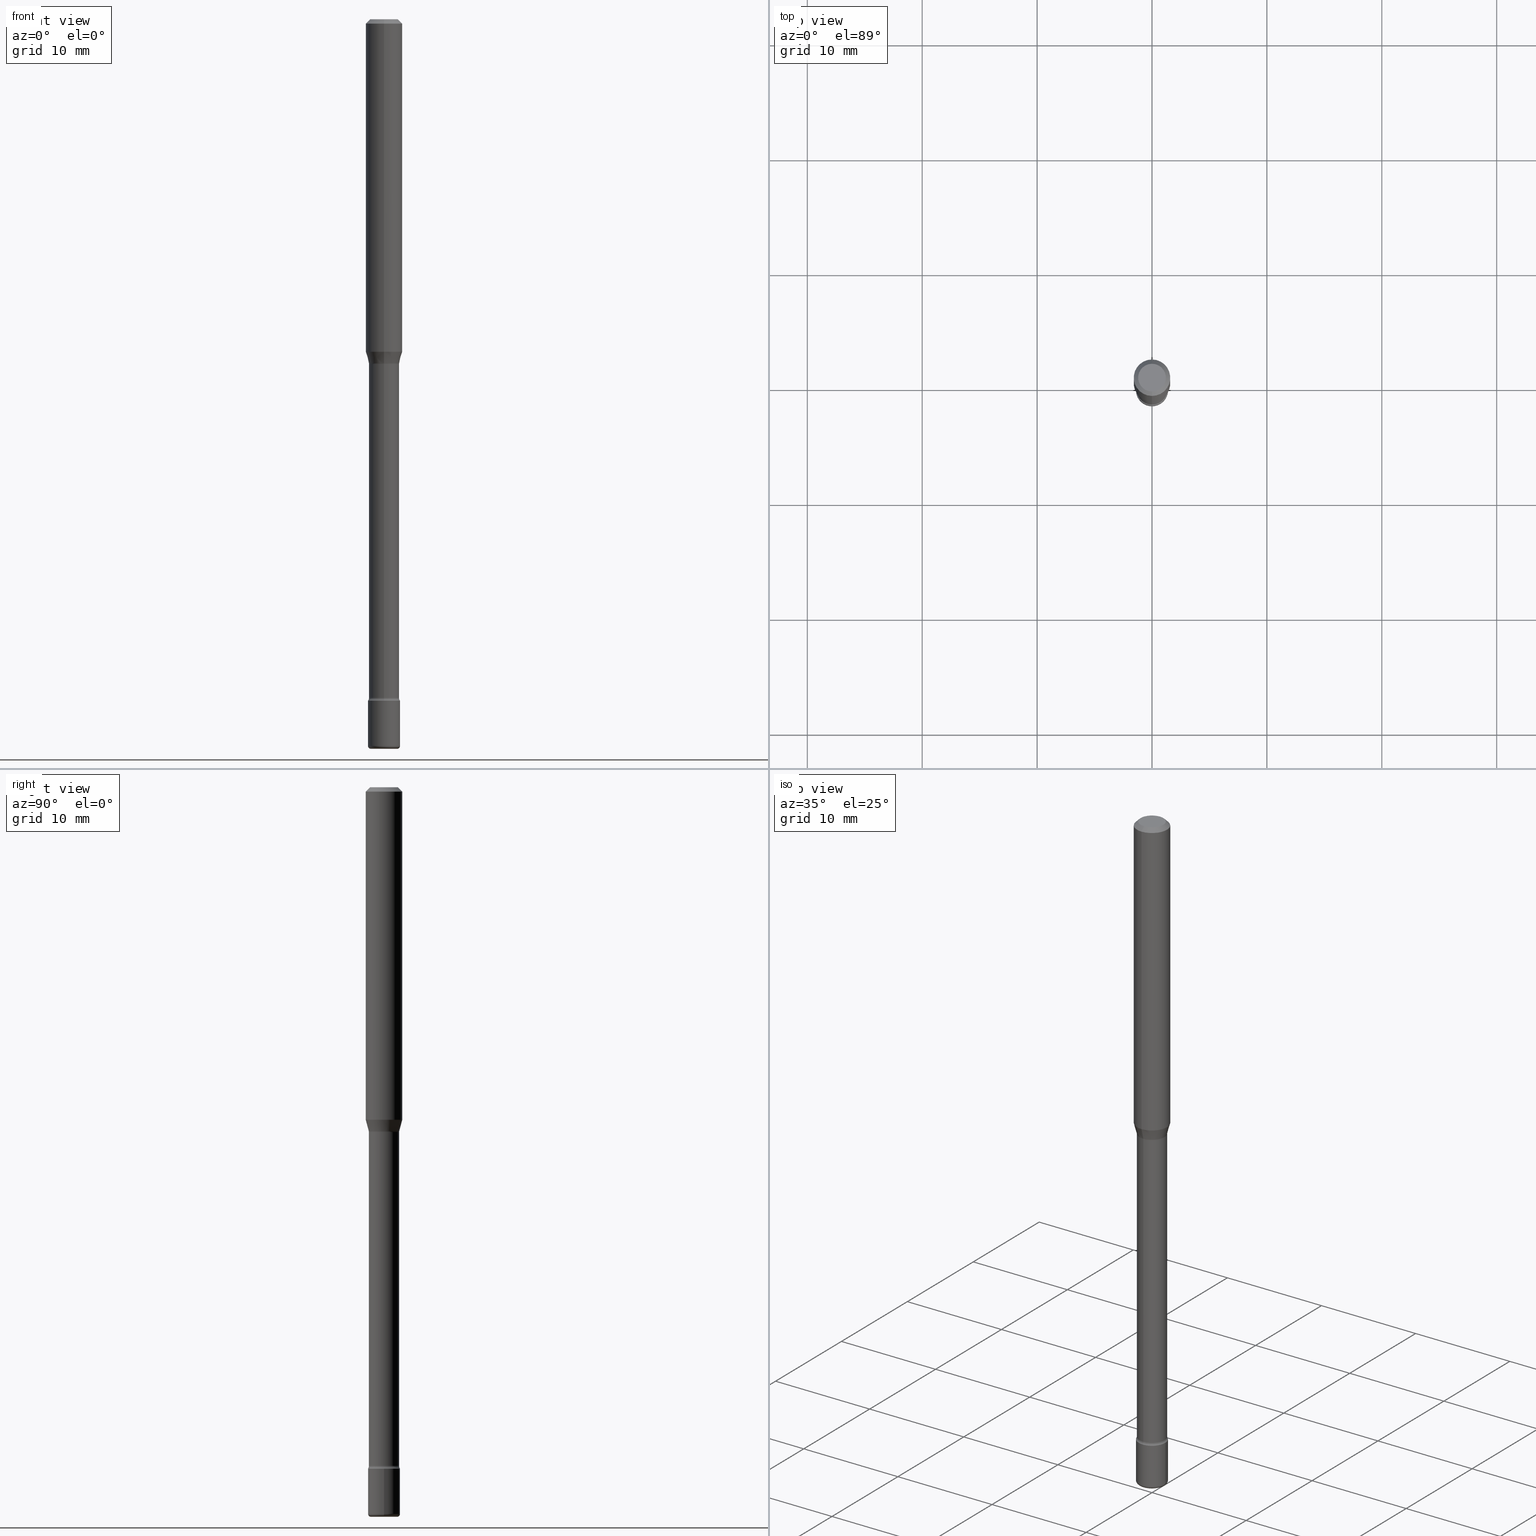
[diagram: canonical four-view strip — front | top / right | iso, engineering-drawing reading convention]
A machine part, canonical four-view strip (front | top / right | iso — engineering-drawing reading convention). The complete STEP part file that produces these views, byte-faithful:
ISO-10303-21;
HEADER;
FILE_DESCRIPTION (( 'STEP AP203' ),
    '1' );
FILE_NAME ('08973.STEP',
    '2024-03-06T20:13:18',
    ( '' ),
    ( '' ),
    'SwSTEP 2.0',
    'SolidWorks 2023',
    '' );
FILE_SCHEMA (( 'CONFIG_CONTROL_DESIGN' ));
ENDSEC;

DATA;
#1 = EDGE_LOOP ( 'NONE', ( #112, #293, #485, #316 ) ) ;
#2 = CARTESIAN_POINT ( 'NONE',  ( -3.773273898774339776E-16, -0.04749999999999998668, 1.387675388061806859E-16 ) ) ;
#3 = VERTEX_POINT ( 'NONE', #206 ) ;
#4 = AXIS2_PLACEMENT_3D ( 'NONE', #484, #449, #89 ) ;
#5 = TOROIDAL_SURFACE ( 'NONE', #452, 0.04499999999999999833, 0.01000000000000009041 ) ;
#6 = DIRECTION ( 'NONE',  ( -1.000000000000000000, 6.982962677686265922E-15, -4.876176775795935793E-29 ) ) ;
#7 = DIRECTION ( 'NONE',  ( 1.839019923739600315E-15, 0.2588190451025249583, 0.9659258262890670910 ) ) ;
#8 = CC_DESIGN_PERSON_AND_ORGANIZATION_ASSIGNMENT ( #30, #466, ( #14 ) ) ;
#9 = CYLINDRICAL_SURFACE ( 'NONE', #74, 0.05500000000000001416 ) ;
#10 = CARTESIAN_POINT ( 'NONE',  ( 3.316907271900975110E-16, 0.04749999999999998668, 5.964390164993622742E-17 ) ) ;
#11 = CLOSED_SHELL ( 'NONE', ( #498, #445, #402, #249, #288, #490 ) ) ;
#12 = CIRCLE ( 'NONE', #392, 0.05169999999999999596 ) ;
#13 = VERTEX_POINT ( 'NONE', #371 ) ;
#14 = PRODUCT ( '08973', '08973', '', ( #475 ) ) ;
#15 = LINE ( 'NONE', #289, #193 ) ;
#16 = ORIENTED_EDGE ( 'NONE', *, *, #164, .F. ) ;
#17 = DIRECTION ( 'NONE',  ( -2.445468806185136597E-29, 3.491481338843145583E-15, 1.000000000000000000 ) ) ;
#18 = ORIENTED_EDGE ( 'NONE', *, *, #537, .T. ) ;
#19 = CARTESIAN_POINT ( 'NONE',  ( -4.657636106016450234E-16, -0.06670000000000413098, -1.181974787463810683 ) ) ;
#20 = CLOSED_SHELL ( 'NONE', ( #205, #491, #145, #387, #456, #271, #297, #90, #88, #468, #55, #448, #327, #310 ) ) ;
#21 = CARTESIAN_POINT ( 'NONE',  ( 0.05500000000000000028, -8.536671873471490084E-15, -2.334999999999999964 ) ) ;
#22 = AXIS2_PLACEMENT_3D ( 'NONE', #526, #441, #235 ) ;
#23 = LOCAL_TIME ( 15, 13, 18.00000000000000000, #179 ) ;
#24 = CARTESIAN_POINT ( 'NONE',  ( 4.364351673553919652E-16, 0.06249999999999995143, -0.01500000000000024578 ) ) ;
#25 = CC_DESIGN_DATE_AND_TIME_ASSIGNMENT ( #238, #226, ( #422 ) ) ;
#26 = COORDINATED_UNIVERSAL_TIME_OFFSET ( 5, 0, .BEHIND. ) ;
#27 = EDGE_CURVE ( 'NONE', #43, #521, #181, .T. ) ;
#28 = DIRECTION ( 'NONE',  ( 1.000000000000000000, -6.982962677686260400E-15, 0.000000000000000000 ) ) ;
#29 = ORIENTED_EDGE ( 'NONE', *, *, #76, .F. ) ;
#30 = PERSON_AND_ORGANIZATION ( #274, #382 ) ;
#31 = CARTESIAN_POINT ( 'NONE',  ( 3.673505943879716688E-16, 0.05169999999999998902, 2.975576301308702297E-16 ) ) ;
#32 = AXIS2_PLACEMENT_3D ( 'NONE', #64, #58, #246 ) ;
#33 = CIRCLE ( 'NONE', #110, 0.01499999999999998557 ) ;
#34 = AXIS2_PLACEMENT_3D ( 'NONE', #339, #208, #510 ) ;
#35 = EDGE_LOOP ( 'NONE', ( #282, #401, #66, #474 ) ) ;
#36 = CARTESIAN_POINT ( 'NONE',  ( -1.169113584055446105E-44, 1.669184350826100908E-30, 4.780733988912460139E-16 ) ) ;
#37 = EDGE_LOOP ( 'NONE', ( #153, #483, #16, #355 ) ) ;
#38 = PERSON_AND_ORGANIZATION ( #274, #382 ) ;
#39 = DIRECTION ( 'NONE',  ( -6.982962677686266711E-15, -1.000000000000000000, 2.616155696869698836E-15 ) ) ;
#40 = ORIENTED_EDGE ( 'NONE', *, *, #542, .F. ) ;
#41 = FACE_OUTER_BOUND ( 'NONE', #1, .T. ) ;
#42 = APPLICATION_CONTEXT ( 'configuration controlled 3d designs of mechanical parts and assemblies' ) ;
#43 = VERTEX_POINT ( 'NONE', #325 ) ;
#44 = CIRCLE ( 'NONE', #329, 0.05169999999999998902 ) ;
#45 = APPROVAL_ROLE ( '' ) ;
#46 = AXIS2_PLACEMENT_3D ( 'NONE', #152, #328, #363 ) ;
#47 = EDGE_CURVE ( 'NONE', #521, #314, #459, .T. ) ;
#48 = CARTESIAN_POINT ( 'NONE',  ( 2.880890070537329542E-29, -4.113428890347467659E-15, -1.178092501787272983 ) ) ;
#49 = EDGE_LOOP ( 'NONE', ( #84, #126, #546, #563 ) ) ;
#50 = DIRECTION ( 'NONE',  ( -2.445385286950522456E-29, 3.491600943140732554E-15, 1.000000000000000000 ) ) ;
#51 = EDGE_LOOP ( 'NONE', ( #216, #18 ) ) ;
#52 = CARTESIAN_POINT ( 'NONE',  ( -4.287811248607203282E-16, -0.06250000000000005551, -0.01499999999999981036 ) ) ;
#53 = CIRCLE ( 'NONE', #61, 0.04749999999999998668 ) ;
#54 = CARTESIAN_POINT ( 'NONE',  ( 3.790745495280705543E-16, 0.05169999999999187051, -2.325613307291702903 ) ) ;
#55 = ADVANCED_FACE ( 'NONE', ( #144 ), #409, .F. ) ;
#56 = FACE_OUTER_BOUND ( 'NONE', #558, .T. ) ;
#57 = CARTESIAN_POINT ( 'NONE',  ( 5.710169662442294357E-29, -8.152608926198745099E-15, -2.334999999999999964 ) ) ;
#58 = DIRECTION ( 'NONE',  ( -2.445468806185136597E-29, 3.491481338843145583E-15, 1.000000000000000000 ) ) ;
#59 = AXIS2_PLACEMENT_3D ( 'NONE', #552, #215, #171 ) ;
#60 = DIRECTION ( 'NONE',  ( -2.445385286950522456E-29, 3.491600943140732554E-15, 1.000000000000000000 ) ) ;
#61 = AXIS2_PLACEMENT_3D ( 'NONE', #315, #94, #446 ) ;
#62 = EDGE_CURVE ( 'NONE', #269, #129, #320, .T. ) ;
#63 = AXIS2_PLACEMENT_3D ( 'NONE', #534, #559, #113 ) ;
#64 = CARTESIAN_POINT ( 'NONE',  ( 6.113672015462842613E-29, -8.728703347107864943E-15, -2.500000000000000000 ) ) ;
#65 = CARTESIAN_POINT ( 'NONE',  ( 0.000000000000000000, 0.000000000000000000, 0.000000000000000000 ) ) ;
#66 = ORIENTED_EDGE ( 'NONE', *, *, #396, .T. ) ;
#67 = COORDINATED_UNIVERSAL_TIME_OFFSET ( 5, 0, .BEHIND. ) ;
#68 = DIRECTION ( 'NONE',  ( -2.445385286950522456E-29, 3.491600943140732554E-15, 1.000000000000000000 ) ) ;
#69 = EDGE_CURVE ( 'NONE', #384, #13, #321, .T. ) ;
#70 = CARTESIAN_POINT ( 'NONE',  ( -3.840629472726877429E-16, -0.05500000000000818817, -2.334999999999999964 ) ) ;
#71 = EDGE_CURVE ( 'NONE', #201, #429, #167, .T. ) ;
#72 = DIRECTION ( 'NONE',  ( -2.445385286950522456E-29, 3.491600943140732554E-15, 1.000000000000000000 ) ) ;
#73 = AXIS2_PLACEMENT_3D ( 'NONE', #103, #454, #146 ) ;
#74 = AXIS2_PLACEMENT_3D ( 'NONE', #151, #17, #292 ) ;
#75 = CARTESIAN_POINT ( 'NONE',  ( 6.089217327400989947E-29, -8.693788533719431716E-15, -2.489999999999999769 ) ) ;
#76 = EDGE_CURVE ( 'NONE', #314, #129, #340, .T. ) ;
#77 = DIRECTION ( 'NONE',  ( -6.982962677686266711E-15, -1.000000000000000000, 2.616155696869698836E-15 ) ) ;
#78 = EDGE_CURVE ( 'NONE', #3, #98, #530, .T. ) ;
#79 = ORIENTED_EDGE ( 'NONE', *, *, #419, .T. ) ;
#80 = FACE_OUTER_BOUND ( 'NONE', #391, .T. ) ;
#81 = VECTOR ( 'NONE', #283, 39.37007874015748143 ) ;
#82 = AXIS2_PLACEMENT_3D ( 'NONE', #509, #423, #303 ) ;
#83 = FACE_OUTER_BOUND ( 'NONE', #178, .T. ) ;
#84 = ORIENTED_EDGE ( 'NONE', *, *, #354, .F. ) ;
#85 = PERSON_AND_ORGANIZATION_ROLE ( 'classification_officer' ) ;
#86 = ADVANCED_BREP_SHAPE_REPRESENTATION ( '08973', ( #104, #302, #268 ), #248 ) ;
#87 = CARTESIAN_POINT ( 'NONE',  ( 4.739320047520156833E-16, 0.06669999999999587370, -1.181974787463811127 ) ) ;
#88 = ADVANCED_FACE ( 'NONE', ( #383 ), #209, .T. ) ;
#89 = DIRECTION ( 'NONE',  ( -6.982962677686268288E-15, -1.000000000000000000, 0.000000000000000000 ) ) ;
#90 = ADVANCED_FACE ( 'NONE', ( #343 ), #345, .T. ) ;
#91 = TOROIDAL_SURFACE ( 'NONE', #421, 0.06670000000000005091, 0.01500000000000004975 ) ;
#92 = ORIENTED_EDGE ( 'NONE', *, *, #542, .T. ) ;
#93 = AXIS2_PLACEMENT_3D ( 'NONE', #223, #177, #255 ) ;
#94 = DIRECTION ( 'NONE',  ( -2.445385286950522456E-29, 3.491600943140732554E-15, 1.000000000000000000 ) ) ;
#95 = ORIENTED_EDGE ( 'NONE', *, *, #354, .T. ) ;
#96 = PERSON_AND_ORGANIZATION ( #274, #382 ) ;
#97 = FACE_OUTER_BOUND ( 'NONE', #49, .T. ) ;
#98 = VERTEX_POINT ( 'NONE', #514 ) ;
#99 = APPROVAL ( #133, 'UNSPECIFIED' ) ;
#100 = CARTESIAN_POINT ( 'NONE',  ( 6.089217327400989947E-29, -8.693788533719431716E-15, -2.489999999999999769 ) ) ;
#101 = EDGE_CURVE ( 'NONE', #98, #3, #478, .T. ) ;
#102 = VECTOR ( 'NONE', #368, 39.37007874015748143 ) ;
#103 = CARTESIAN_POINT ( 'NONE',  ( 3.668077930425790463E-31, -5.237401414711108766E-17, -0.01500000000000002720 ) ) ;
#104 = MANIFOLD_SOLID_BREP ( 'Body-Move/Copy2[1]', #11 ) ;
#105 = CYLINDRICAL_SURFACE ( 'NONE', #557, 0.05169999999999998902 ) ;
#106 = EDGE_CURVE ( 'NONE', #544, #13, #411, .T. ) ;
#107 = FACE_OUTER_BOUND ( 'NONE', #51, .T. ) ;
#108 = ORIENTED_EDGE ( 'NONE', *, *, #374, .F. ) ;
#109 = FACE_OUTER_BOUND ( 'NONE', #443, .T. ) ;
#110 = AXIS2_PLACEMENT_3D ( 'NONE', #87, #190, #127 ) ;
#111 = CC_DESIGN_APPROVAL ( #99, ( #422 ) ) ;
#112 = ORIENTED_EDGE ( 'NONE', *, *, #197, .F. ) ;
#113 = DIRECTION ( 'NONE',  ( -6.982962677686265922E-15, -1.000000000000000000, 3.483106191921935554E-15 ) ) ;
#114 = DIRECTION ( 'NONE',  ( -6.982962677686266711E-15, -1.000000000000000000, 4.966996352116842287E-15 ) ) ;
#115 = EDGE_CURVE ( 'NONE', #314, #493, #276, .T. ) ;
#116 = CARTESIAN_POINT ( 'NONE',  ( 3.673505943880288119E-16, 0.05169999999999587426, -1.181974787463810905 ) ) ;
#117 = DIRECTION ( 'NONE',  ( -2.445385286950522456E-29, 3.491600943140732554E-15, 1.000000000000000000 ) ) ;
#118 = CARTESIAN_POINT ( 'NONE',  ( 2.786990575543824291E-29, -3.979356126014852936E-15, -1.139693851278256176 ) ) ;
#119 = DIRECTION ( 'NONE',  ( 2.445385286950522456E-29, -3.491600943140732554E-15, -1.000000000000000000 ) ) ;
#120 = AXIS2_PLACEMENT_3D ( 'NONE', #57, #326, #499 ) ;
#121 = DIRECTION ( 'NONE',  ( -6.982962677686265922E-15, -1.000000000000000000, 4.370956789862821150E-15 ) ) ;
#122 = CARTESIAN_POINT ( 'NONE',  ( -4.364351673553912750E-16, -0.06250000000000005551, -0.01499999999999981036 ) ) ;
#123 = EDGE_CURVE ( 'NONE', #369, #429, #348, .T. ) ;
#124 = EDGE_LOOP ( 'NONE', ( #533, #367, #40, #239 ) ) ;
#125 = CARTESIAN_POINT ( 'NONE',  ( -0.04499999999999999833, -8.374044302627387137E-15, -2.489999999999999769 ) ) ;
#126 = ORIENTED_EDGE ( 'NONE', *, *, #101, .F. ) ;
#127 = DIRECTION ( 'NONE',  ( 7.105427357601006592E-15, 1.000000000000000000, 0.000000000000000000 ) ) ;
#128 = AXIS2_PLACEMENT_3D ( 'NONE', #36, #338, #376 ) ;
#129 = VERTEX_POINT ( 'NONE', #21 ) ;
#130 = COORDINATED_UNIVERSAL_TIME_OFFSET ( 5, 0, .BEHIND. ) ;
#131 = CARTESIAN_POINT ( 'NONE',  ( -0.05500000000000000028, -8.032400225291033747E-15, -2.334999999999999964 ) ) ;
#132 = ORIENTED_EDGE ( 'NONE', *, *, #291, .T. ) ;
#133 = APPROVAL_STATUS ( 'not_yet_approved' ) ;
#134 = FACE_OUTER_BOUND ( 'NONE', #173, .T. ) ;
#135 = VERTEX_POINT ( 'NONE', #122 ) ;
#136 = DATE_AND_TIME ( #437, #23 ) ;
#137 = DIRECTION ( 'NONE',  ( -1.807323732225330139E-15, -0.2588190451025181860, 0.9659258262890689783 ) ) ;
#138 = AXIS2_PLACEMENT_3D ( 'NONE', #398, #192, #160 ) ;
#139 = AXIS2_PLACEMENT_3D ( 'NONE', #482, #438, #393 ) ;
#140 = ORIENTED_EDGE ( 'NONE', *, *, #162, .F. ) ;
#141 = LOCAL_TIME ( 15, 13, 18.00000000000000000, #26 ) ;
#142 = COORDINATED_UNIVERSAL_TIME_OFFSET ( 5, 0, .BEHIND. ) ;
#143 = DIRECTION ( 'NONE',  ( -6.982962677686265133E-15, -1.000000000000000000, 3.491600943140732554E-15 ) ) ;
#144 = FACE_OUTER_BOUND ( 'NONE', #290, .T. ) ;
#145 = ADVANCED_FACE ( 'NONE', ( #80 ), #91, .F. ) ;
#146 = DIRECTION ( 'NONE',  ( 6.982962677686265922E-15, 1.000000000000000000, -3.483106191921935554E-15 ) ) ;
#147 = DIRECTION ( 'NONE',  ( 2.445385286950522176E-29, -3.491600943140732554E-15, -1.000000000000000000 ) ) ;
#148 = AXIS2_PLACEMENT_3D ( 'NONE', #428, #511, #467 ) ;
#149 = AXIS2_PLACEMENT_3D ( 'NONE', #301, #72, #175 ) ;
#150 = CIRCLE ( 'NONE', #487, 0.06250000000000000000 ) ;
#151 = CARTESIAN_POINT ( 'NONE',  ( 0.000000000000000000, 0.000000000000000000, 0.000000000000000000 ) ) ;
#152 = CARTESIAN_POINT ( 'NONE',  ( -1.169113584055446105E-44, 1.669184350826100908E-30, 4.780733988912460139E-16 ) ) ;
#153 = ORIENTED_EDGE ( 'NONE', *, *, #374, .T. ) ;
#154 = DIRECTION ( 'NONE',  ( -6.982962677686266711E-15, -1.000000000000000000, 3.491600943140732948E-15 ) ) ;
#155 = ORIENTED_EDGE ( 'NONE', *, *, #162, .T. ) ;
#156 = APPLICATION_CONTEXT ( 'configuration controlled 3d designs of mechanical parts and assemblies' ) ;
#157 = CARTESIAN_POINT ( 'NONE',  ( -4.364351673553638128E-16, -0.06250000000000399680, -1.139693851278255954 ) ) ;
#158 = AXIS2_PLACEMENT_3D ( 'NONE', #432, #261, #469 ) ;
#159 = AXIS2_PLACEMENT_3D ( 'NONE', #19, #174, #516 ) ;
#160 = DIRECTION ( 'NONE',  ( 1.000000000000000000, -6.982962677686269077E-15, 0.000000000000000000 ) ) ;
#161 = APPROVAL ( #523, 'UNSPECIFIED' ) ;
#162 = EDGE_CURVE ( 'NONE', #521, #43, #231, .T. ) ;
#163 = APPROVAL_STATUS ( 'not_yet_approved' ) ;
#164 = EDGE_CURVE ( 'NONE', #479, #527, #12, .T. ) ;
#165 = DIRECTION ( 'NONE',  ( -2.445385286950522456E-29, 3.491600943140732554E-15, 1.000000000000000000 ) ) ;
#166 = DIRECTION ( 'NONE',  ( -2.445385286950522456E-29, 3.491600943140732554E-15, 1.000000000000000000 ) ) ;
#167 = LINE ( 'NONE', #377, #451 ) ;
#168 = DIRECTION ( 'NONE',  ( -6.982962677686265133E-15, -1.000000000000000000, 3.491600943140732948E-15 ) ) ;
#169 = CC_DESIGN_PERSON_AND_ORGANIZATION_ASSIGNMENT ( #96, #234, ( #462 ) ) ;
#170 = CIRCLE ( 'NONE', #470, 0.05169999999999999596 ) ;
#171 = DIRECTION ( 'NONE',  ( 1.000000000000000000, -6.982962677686262766E-15, 0.000000000000000000 ) ) ;
#172 = LOCAL_TIME ( 15, 13, 18.00000000000000000, #67 ) ;
#173 = EDGE_LOOP ( 'NONE', ( #518, #298, #176, #333 ) ) ;
#174 = DIRECTION ( 'NONE',  ( -1.000000000000000000, 6.982962677686265922E-15, -4.883557194083112340E-29 ) ) ;
#175 = DIRECTION ( 'NONE',  ( -6.982962677686266711E-15, -1.000000000000000000, 4.966996352116842287E-15 ) ) ;
#176 = ORIENTED_EDGE ( 'NONE', *, *, #47, .T. ) ;
#177 = DIRECTION ( 'NONE',  ( -2.445385286950522456E-29, 3.491600943140732554E-15, 1.000000000000000000 ) ) ;
#178 = EDGE_LOOP ( 'NONE', ( #395, #344, #346, #464 ) ) ;
#179 = COORDINATED_UNIVERSAL_TIME_OFFSET ( 5, 0, .BEHIND. ) ;
#180 = DIRECTION ( 'NONE',  ( -6.982962677686265922E-15, -1.000000000000000000, 4.370956789862821150E-15 ) ) ;
#181 = CIRCLE ( 'NONE', #32, 0.04499999999999999833 ) ;
#182 = CONICAL_SURFACE ( 'NONE', #505, 0.05221111260566397433, 0.2617993877991502960 ) ;
#183 = CIRCLE ( 'NONE', #394, 0.04749999999999998668 ) ;
#184 = CC_DESIGN_PERSON_AND_ORGANIZATION_ASSIGNMENT ( #38, #279, ( #462 ) ) ;
#185 = ORIENTED_EDGE ( 'NONE', *, *, #378, .F. ) ;
#186 = LINE ( 'NONE', #52, #81 ) ;
#187 = ORIENTED_EDGE ( 'NONE', *, *, #200, .T. ) ;
#188 = DIRECTION ( 'NONE',  ( -6.982962677686266711E-15, -1.000000000000000000, 2.642019336232363246E-15 ) ) ;
#189 = EDGE_LOOP ( 'NONE', ( #155, #566, #323, #426 ) ) ;
#190 = DIRECTION ( 'NONE',  ( 1.000000000000000000, -7.105427357601001070E-15, 4.926316973272284020E-29 ) ) ;
#191 = VECTOR ( 'NONE', #137, 39.37007874015748143 ) ;
#192 = DIRECTION ( 'NONE',  ( -6.982962677686266711E-15, -1.000000000000000000, 3.491481338843145583E-15 ) ) ;
#193 = VECTOR ( 'NONE', #7, 39.37007874015748143 ) ;
#194 = FACE_OUTER_BOUND ( 'NONE', #264, .T. ) ;
#195 = CYLINDRICAL_SURFACE ( 'NONE', #46, 0.06250000000000000000 ) ;
#196 = DIRECTION ( 'NONE',  ( 1.000000000000000000, -6.982962677686250933E-15, 4.883557194083107856E-29 ) ) ;
#197 = EDGE_CURVE ( 'NONE', #384, #527, #263, .T. ) ;
#198 = AXIS2_PLACEMENT_3D ( 'NONE', #309, #68, #77 ) ;
#199 = CARTESIAN_POINT ( 'NONE',  ( -1.169113584055446105E-44, 1.669184350826100908E-30, 4.780733988912460139E-16 ) ) ;
#200 = EDGE_CURVE ( 'NONE', #13, #544, #410, .T. ) ;
#201 = VERTEX_POINT ( 'NONE', #213 ) ;
#202 = DIRECTION ( 'NONE',  ( -6.982962677686265133E-15, -1.000000000000000000, 3.491600943140732554E-15 ) ) ;
#203 = ORIENTED_EDGE ( 'NONE', *, *, #71, .T. ) ;
#204 = APPROVAL_ROLE ( '' ) ;
#205 = ADVANCED_FACE ( 'NONE', ( #517 ), #430, .F. ) ;
#206 = CARTESIAN_POINT ( 'NONE',  ( 4.075357388645952499E-16, 0.05221111260565985956, -1.178092501787273205 ) ) ;
#207 = EDGE_CURVE ( 'NONE', #43, #493, #404, .T. ) ;
#208 = DIRECTION ( 'NONE',  ( -2.445385286950522456E-29, 3.491600943140732554E-15, 1.000000000000000000 ) ) ;
#209 = CONICAL_SURFACE ( 'NONE', #359, 0.06250000000000000000, 0.7853981633974485010 ) ;
#210 = CIRCLE ( 'NONE', #497, 0.05500000000000000028 ) ;
#211 = CARTESIAN_POINT ( 'NONE',  ( 2.890383754810473239E-29, -4.126984282677208410E-15, -1.181974787463810683 ) ) ;
#212 = APPROVAL_DATE_TIME ( #418, #413 ) ;
#213 = CARTESIAN_POINT ( 'NONE',  ( 4.440892098500903249E-16, 0.06249999999999600320, -1.139693851278256398 ) ) ;
#214 = CALENDAR_DATE ( 2024, 6, 3 ) ;
#215 = DIRECTION ( 'NONE',  ( -2.445468806185136597E-29, 3.491481338843145583E-15, 1.000000000000000000 ) ) ;
#216 = ORIENTED_EDGE ( 'NONE', *, *, #280, .T. ) ;
#217 = APPLICATION_PROTOCOL_DEFINITION ( 'international standard', 'config_control_design', 1994, #42 ) ;
#218 = AXIS2_PLACEMENT_3D ( 'NONE', #435, #488, #273 ) ;
#219 = DIRECTION ( 'NONE',  ( -2.445468806185136877E-29, 3.491481338843145188E-15, 1.000000000000000000 ) ) ;
#220 = CC_DESIGN_APPROVAL ( #161, ( #462 ) ) ;
#221 = ORIENTED_EDGE ( 'NONE', *, *, #115, .T. ) ;
#222 = SECURITY_CLASSIFICATION_LEVEL ( 'unclassified' ) ;
#223 = CARTESIAN_POINT ( 'NONE',  ( 2.880890070537329542E-29, -4.113428890347467659E-15, -1.178092501787272983 ) ) ;
#224 = EDGE_CURVE ( 'NONE', #527, #479, #170, .T. ) ;
#225 = ORIENTED_EDGE ( 'NONE', *, *, #69, .F. ) ;
#226 = DATE_TIME_ROLE ( 'classification_date' ) ;
#227 = DIRECTION ( 'NONE',  ( -2.445385286950522456E-29, 3.491600943140732554E-15, 1.000000000000000000 ) ) ;
#228 = PRODUCT_DEFINITION ( 'UNKNOWN', '', #462, #341 ) ;
#229 = ORIENTED_EDGE ( 'NONE', *, *, #78, .F. ) ;
#230 = DIRECTION ( 'NONE',  ( -2.445385286950522456E-29, 3.491600943140732554E-15, 1.000000000000000000 ) ) ;
#231 = CIRCLE ( 'NONE', #158, 0.04499999999999999833 ) ;
#232 = APPROVAL_PERSON_ORGANIZATION ( #399, #99, #45 ) ;
#233 = ORIENTED_EDGE ( 'NONE', *, *, #551, .F. ) ;
#234 = PERSON_AND_ORGANIZATION_ROLE ( 'design_supplier' ) ;
#235 = DIRECTION ( 'NONE',  ( 1.000000000000000000, -6.982962677686250933E-15, 4.883557194083107856E-29 ) ) ;
#236 = ORIENTED_EDGE ( 'NONE', *, *, #291, .F. ) ;
#237 = EDGE_CURVE ( 'NONE', #250, #479, #281, .T. ) ;
#238 = DATE_AND_TIME ( #444, #330 ) ;
#239 = ORIENTED_EDGE ( 'NONE', *, *, #244, .F. ) ;
#240 = LINE ( 'NONE', #356, #191 ) ;
#241 = VECTOR ( 'NONE', #165, 39.37007874015748143 ) ;
#242 = CARTESIAN_POINT ( 'NONE',  ( 5.710169662442294357E-29, -8.152608926198745099E-15, -2.334999999999999964 ) ) ;
#243 = FACE_OUTER_BOUND ( 'NONE', #351, .T. ) ;
#244 = EDGE_CURVE ( 'NONE', #98, #541, #240, .T. ) ;
#245 = FACE_OUTER_BOUND ( 'NONE', #189, .T. ) ;
#246 = DIRECTION ( 'NONE',  ( 1.000000000000000000, -6.982962677686246989E-15, 0.000000000000000000 ) ) ;
#247 = AXIS2_PLACEMENT_3D ( 'NONE', #358, #227, #180 ) ;
#248 =( GEOMETRIC_REPRESENTATION_CONTEXT ( 3 ) GLOBAL_UNCERTAINTY_ASSIGNED_CONTEXT ( ( #553 ) ) GLOBAL_UNIT_ASSIGNED_CONTEXT ( ( #306, #427, #262 ) ) REPRESENTATION_CONTEXT ( 'NONE', 'WORKASPACE' ) );
#249 = ADVANCED_FACE ( 'NONE', ( #194 ), #524, .T. ) ;
#250 = VERTEX_POINT ( 'NONE', #492 ) ;
#251 = EDGE_CURVE ( 'NONE', #201, #541, #312, .T. ) ;
#252 = DIRECTION ( 'NONE',  ( -2.445468806185136597E-29, 3.491481338843145583E-15, 1.000000000000000000 ) ) ;
#253 = ORIENTED_EDGE ( 'NONE', *, *, #520, .F. ) ;
#254 = CALENDAR_DATE ( 2024, 6, 3 ) ;
#255 = DIRECTION ( 'NONE',  ( -6.982962677686266711E-15, -1.000000000000000000, 2.616155696869698836E-15 ) ) ;
#256 = DIRECTION ( 'NONE',  ( -2.445385286950522456E-29, 3.491600943140732554E-15, 1.000000000000000000 ) ) ;
#257 = CONICAL_SURFACE ( 'NONE', #73, 0.06250000000000000000, 0.7853981633974485010 ) ;
#258 = AXIS2_PLACEMENT_3D ( 'NONE', #10, #147, #364 ) ;
#259 = CARTESIAN_POINT ( 'NONE',  ( 0.05500000000000001416, -3.840629472727447381E-16, 2.681897226687765177E-30 ) ) ;
#260 = DIRECTION ( 'NONE',  ( 1.000000000000000000, 0.000000000000000000, 0.000000000000000000 ) ) ;
#261 = DIRECTION ( 'NONE',  ( -2.445468806185136597E-29, 3.491481338843145583E-15, 1.000000000000000000 ) ) ;
#262 =( NAMED_UNIT ( * ) SI_UNIT ( $, .STERADIAN. ) SOLID_ANGLE_UNIT ( ) );
#263 = LINE ( 'NONE', #31, #241 ) ;
#264 = EDGE_LOOP ( 'NONE', ( #140, #357 ) ) ;
#265 = LENGTH_MEASURE_WITH_UNIT ( LENGTH_MEASURE( 0.02539999999999999897 ), #381 );
#266 = AXIS2_PLACEMENT_3D ( 'NONE', #397, #400, #572 ) ;
#267 = CARTESIAN_POINT ( 'NONE',  ( 2.890482472440055862E-29, -4.126842913412988651E-15, -1.181974787463810905 ) ) ;
#268 = AXIS2_PLACEMENT_3D ( 'NONE', #507, #308, #260 ) ;
#269 = VERTEX_POINT ( 'NONE', #131 ) ;
#270 = CARTESIAN_POINT ( 'NONE',  ( 3.840629472727447874E-16, 0.04749999999999998668, -1.929345507921888436E-16 ) ) ;
#271 = ADVANCED_FACE ( 'NONE', ( #275 ), #380, .T. ) ;
#272 = ORIENTED_EDGE ( 'NONE', *, *, #465, .T. ) ;
#273 = DIRECTION ( 'NONE',  ( -6.982962677686266711E-15, -1.000000000000000000, 2.616155696869698836E-15 ) ) ;
#274 = PERSON ( 'UNSPECIFIED', 'UNSPECIFIED', 'UNSPECIFIED', ('UNSPECIFIED'), ('UNSPECIFIED'), ('UNSPECIFIED') ) ;
#275 = FACE_OUTER_BOUND ( 'NONE', #124, .T. ) ;
#276 = CIRCLE ( 'NONE', #512, 0.05500000000000001416 ) ;
#277 = AXIS2_PLACEMENT_3D ( 'NONE', #543, #494, #500 ) ;
#278 = ORIENTED_EDGE ( 'NONE', *, *, #224, .T. ) ;
#279 = PERSON_AND_ORGANIZATION_ROLE ( 'creator' ) ;
#280 = EDGE_CURVE ( 'NONE', #369, #311, #53, .T. ) ;
#281 = LINE ( 'NONE', #565, #486 ) ;
#282 = ORIENTED_EDGE ( 'NONE', *, *, #71, .F. ) ;
#283 = DIRECTION ( 'NONE',  ( -4.851104656540965064E-15, -0.7071067811865501263, -0.7071067811865449082 ) ) ;
#284 = DIRECTION ( 'NONE',  ( -2.445385286950522456E-29, 3.491600943140732554E-15, 1.000000000000000000 ) ) ;
#285 = AXIS2_PLACEMENT_3D ( 'NONE', #473, #424, #305 ) ;
#286 = CC_DESIGN_DATE_AND_TIME_ASSIGNMENT ( #513, #555, ( #228 ) ) ;
#287 = PLANE ( 'NONE',  #258 ) ;
#288 = ADVANCED_FACE ( 'NONE', ( #134 ), #496, .T. ) ;
#289 = CARTESIAN_POINT ( 'NONE',  ( 3.709822678791001255E-16, 0.05221111260565985956, -1.178092501787273205 ) ) ;
#290 = EDGE_LOOP ( 'NONE', ( #447, #379 ) ) ;
#291 = EDGE_CURVE ( 'NONE', #311, #135, #186, .T. ) ;
#292 = DIRECTION ( 'NONE',  ( 1.000000000000000000, -6.982962677686265922E-15, 4.876176775795935232E-29 ) ) ;
#293 = ORIENTED_EDGE ( 'NONE', *, *, #564, .T. ) ;
#294 = TOROIDAL_SURFACE ( 'NONE', #266, 0.06669999999999999540, 0.01499999999999998904 ) ;
#295 = CIRCLE ( 'NONE', #82, 0.06250000000000000000 ) ;
#296 = FACE_OUTER_BOUND ( 'NONE', #433, .T. ) ;
#297 = ADVANCED_FACE ( 'NONE', ( #83 ), #182, .T. ) ;
#298 = ORIENTED_EDGE ( 'NONE', *, *, #27, .T. ) ;
#299 = DIRECTION ( 'NONE',  ( -6.982962677686265133E-15, -1.000000000000000000, 3.491600943140732554E-15 ) ) ;
#300 = CARTESIAN_POINT ( 'NONE',  ( 6.618967874996371320E-46, -9.462197470180014889E-32, -2.708350599300407887E-17 ) ) ;
#301 = CARTESIAN_POINT ( 'NONE',  ( 5.709974645029469894E-29, -8.152888202233611695E-15, -2.334999999999999964 ) ) ;
#302 = MANIFOLD_SOLID_BREP ( 'Body-Move/Copy2[2]', #20 ) ;
#303 = DIRECTION ( 'NONE',  ( -6.982962677686265922E-15, -1.000000000000000000, 3.483106191921935554E-15 ) ) ;
#304 = AXIS2_PLACEMENT_3D ( 'NONE', #528, #319, #6 ) ;
#305 = DIRECTION ( 'NONE',  ( 7.105427357601001859E-15, 1.000000000000000000, 0.000000000000000000 ) ) ;
#306 =( CONVERSION_BASED_UNIT ( 'INCH', #265 ) LENGTH_UNIT ( ) NAMED_UNIT ( #536 ) );
#307 = DIRECTION ( 'NONE',  ( -6.982962677686266711E-15, -1.000000000000000000, 2.642019336232363246E-15 ) ) ;
#308 = DIRECTION ( 'NONE',  ( 0.000000000000000000, 0.000000000000000000, 1.000000000000000000 ) ) ;
#309 = CARTESIAN_POINT ( 'NONE',  ( 2.880890070537329542E-29, -4.113428890347467659E-15, -1.178092501787272983 ) ) ;
#310 = ADVANCED_FACE ( 'NONE', ( #97 ), #294, .F. ) ;
#311 = VERTEX_POINT ( 'NONE', #2 ) ;
#312 = CIRCLE ( 'NONE', #247, 0.06250000000000000000 ) ;
#313 = DIRECTION ( 'NONE',  ( -2.445385286950522456E-29, 3.491600943140732554E-15, 1.000000000000000000 ) ) ;
#314 = VERTEX_POINT ( 'NONE', #403 ) ;
#315 = CARTESIAN_POINT ( 'NONE',  ( 6.618967874996371320E-46, -9.462197470180014889E-32, -2.708350599300407887E-17 ) ) ;
#316 = ORIENTED_EDGE ( 'NONE', *, *, #224, .F. ) ;
#317 = DIRECTION ( 'NONE',  ( -6.982962677686266711E-15, -1.000000000000000000, 5.284038672464726492E-15 ) ) ;
#318 = EDGE_LOOP ( 'NONE', ( #229, #95, #278, #233 ) ) ;
#319 = DIRECTION ( 'NONE',  ( 2.438088387897960049E-29, -3.491481338843145188E-15, -1.000000000000000000 ) ) ;
#320 = CIRCLE ( 'NONE', #59, 0.05500000000000000028 ) ;
#321 = CIRCLE ( 'NONE', #285, 0.01500000000000004455 ) ;
#322 = CC_DESIGN_APPROVAL ( #413, ( #228 ) ) ;
#323 = ORIENTED_EDGE ( 'NONE', *, *, #115, .F. ) ;
#324 = DIRECTION ( 'NONE',  ( 7.105427357601001859E-15, 1.000000000000000000, -3.491481338843145583E-15 ) ) ;
#325 = CARTESIAN_POINT ( 'NONE',  ( -0.04499999999999999833, -8.355974572533597921E-15, -2.500000000000000000 ) ) ;
#326 = DIRECTION ( 'NONE',  ( -2.438088387897960049E-29, 3.491481338843145188E-15, 1.000000000000000000 ) ) ;
#327 = ADVANCED_FACE ( 'NONE', ( #41 ), #353, .T. ) ;
#328 = DIRECTION ( 'NONE',  ( -2.445385286950522456E-29, 3.491600943140732554E-15, 1.000000000000000000 ) ) ;
#329 = AXIS2_PLACEMENT_3D ( 'NONE', #532, #230, #317 ) ;
#330 = LOCAL_TIME ( 15, 13, 18.00000000000000000, #142 ) ;
#331 = FACE_OUTER_BOUND ( 'NONE', #37, .T. ) ;
#332 = DIRECTION ( 'NONE',  ( 1.000000000000000000, -6.982962677686262766E-15, 0.000000000000000000 ) ) ;
#333 = ORIENTED_EDGE ( 'NONE', *, *, #465, .F. ) ;
#334 = CARTESIAN_POINT ( 'NONE',  ( -0.05500000000000004191, -8.302990029051375478E-15, -2.489999999999999769 ) ) ;
#335 = ORIENTED_EDGE ( 'NONE', *, *, #520, .T. ) ;
#336 = LOCAL_TIME ( 15, 13, 18.00000000000000000, #130 ) ;
#337 = ORIENTED_EDGE ( 'NONE', *, *, #549, .T. ) ;
#338 = DIRECTION ( 'NONE',  ( -2.445385286950522456E-29, 3.491600943140732554E-15, 1.000000000000000000 ) ) ;
#339 = CARTESIAN_POINT ( 'NONE',  ( 5.687020564787474071E-29, -8.120113617120347933E-15, -2.325613307291702903 ) ) ;
#340 = LINE ( 'NONE', #259, #372 ) ;
#341 = DESIGN_CONTEXT ( 'detailed design', #42, 'design' ) ;
#342 = VECTOR ( 'NONE', #420, 39.37007874015748143 ) ;
#343 = FACE_OUTER_BOUND ( 'NONE', #35, .T. ) ;
#344 = ORIENTED_EDGE ( 'NONE', *, *, #78, .T. ) ;
#345 = CYLINDRICAL_SURFACE ( 'NONE', #128, 0.06250000000000000000 ) ;
#346 = ORIENTED_EDGE ( 'NONE', *, *, #244, .T. ) ;
#347 = APPROVAL_ROLE ( '' ) ;
#348 = LINE ( 'NONE', #24, #342 ) ;
#349 = DIRECTION ( 'NONE',  ( -2.445385286950522456E-29, 3.491600943140732554E-15, 1.000000000000000000 ) ) ;
#350 = AXIS2_PLACEMENT_3D ( 'NONE', #65, #252, #416 ) ;
#351 = EDGE_LOOP ( 'NONE', ( #388, #272, #515, #417 ) ) ;
#352 = PERSON_AND_ORGANIZATION ( #274, #382 ) ;
#353 = CYLINDRICAL_SURFACE ( 'NONE', #139, 0.05169999999999998902 ) ;
#354 = EDGE_CURVE ( 'NONE', #3, #527, #33, .T. ) ;
#355 = ORIENTED_EDGE ( 'NONE', *, *, #237, .F. ) ;
#356 = CARTESIAN_POINT ( 'NONE',  ( -3.645882506857976514E-16, -0.05221111260566808909, -1.178092501787272983 ) ) ;
#357 = ORIENTED_EDGE ( 'NONE', *, *, #27, .F. ) ;
#358 = CARTESIAN_POINT ( 'NONE',  ( 2.786990575543824291E-29, -3.979356126014852936E-15, -1.139693851278256176 ) ) ;
#359 = AXIS2_PLACEMENT_3D ( 'NONE', #556, #119, #472 ) ;
#360 = EDGE_LOOP ( 'NONE', ( #561, #132, #335, #504 ) ) ;
#361 = CARTESIAN_POINT ( 'NONE',  ( 5.687214798230907854E-29, -8.119835463774270932E-15, -2.325613307291702903 ) ) ;
#362 = CC_DESIGN_PERSON_AND_ORGANIZATION_ASSIGNMENT ( #352, #85, ( #422 ) ) ;
#363 = DIRECTION ( 'NONE',  ( -6.982962677686265922E-15, -1.000000000000000000, 3.491600943140732160E-15 ) ) ;
#364 = DIRECTION ( 'NONE',  ( 6.982962677686265922E-15, 1.000000000000000000, -3.491600943140732554E-15 ) ) ;
#365 = CIRCLE ( 'NONE', #4, 0.01500000000000004455 ) ;
#366 = LINE ( 'NONE', #414, #461 ) ;
#367 = ORIENTED_EDGE ( 'NONE', *, *, #439, .T. ) ;
#368 = DIRECTION ( 'NONE',  ( -2.445468806185136877E-29, 3.491481338843145188E-15, 1.000000000000000000 ) ) ;
#369 = VERTEX_POINT ( 'NONE', #270 ) ;
#370 = APPLICATION_PROTOCOL_DEFINITION ( 'international standard', 'config_control_design', 1994, #156 ) ;
#371 = CARTESIAN_POINT ( 'NONE',  ( 3.907985046681124445E-16, 0.05499999999999189565, -2.335000000000000409 ) ) ;
#372 = VECTOR ( 'NONE', #219, 39.37007874015748143 ) ;
#373 = CARTESIAN_POINT ( 'NONE',  ( 5.687214798230907854E-29, -8.119835463774270932E-15, -2.325613307291702903 ) ) ;
#374 = EDGE_CURVE ( 'NONE', #250, #384, #44, .T. ) ;
#375 = PERSON_AND_ORGANIZATION ( #274, #382 ) ;
#376 = DIRECTION ( 'NONE',  ( -6.982962677686265922E-15, -1.000000000000000000, 3.491600943140732160E-15 ) ) ;
#377 = CARTESIAN_POINT ( 'NONE',  ( 4.440892098500625669E-16, 0.06250000000000000000, 2.598483399449503033E-16 ) ) ;
#378 = EDGE_CURVE ( 'NONE', #250, #544, #365, .T. ) ;
#379 = ORIENTED_EDGE ( 'NONE', *, *, #200, .F. ) ;
#380 = CONICAL_SURFACE ( 'NONE', #218, 0.05221111260566397433, 0.2617993877991502960 ) ;
#381 =( LENGTH_UNIT ( ) NAMED_UNIT ( * ) SI_UNIT ( $, .METRE. ) );
#382 = ORGANIZATION ( 'UNSPECIFIED', 'UNSPECIFIED', '' ) ;
#383 = FACE_OUTER_BOUND ( 'NONE', #436, .T. ) ;
#384 = VERTEX_POINT ( 'NONE', #54 ) ;
#385 = APPROVAL_DATE_TIME ( #136, #161 ) ;
#386 = DIRECTION ( 'NONE',  ( -2.445385286950522456E-29, 3.491600943140732554E-15, 1.000000000000000000 ) ) ;
#387 = ADVANCED_FACE ( 'NONE', ( #406 ), #257, .T. ) ;
#388 = ORIENTED_EDGE ( 'NONE', *, *, #457, .F. ) ;
#389 = DATE_AND_TIME ( #567, #336 ) ;
#390 = DIRECTION ( 'NONE',  ( -2.445385286950522456E-29, 3.491600943140732554E-15, 1.000000000000000000 ) ) ;
#391 = EDGE_LOOP ( 'NONE', ( #570, #502, #187, #185 ) ) ;
#392 = AXIS2_PLACEMENT_3D ( 'NONE', #211, #550, #307 ) ;
#393 = DIRECTION ( 'NONE',  ( -6.982962677686266711E-15, -1.000000000000000000, 3.491600943140732948E-15 ) ) ;
#394 = AXIS2_PLACEMENT_3D ( 'NONE', #300, #166, #168 ) ;
#395 = ORIENTED_EDGE ( 'NONE', *, *, #439, .F. ) ;
#396 = EDGE_CURVE ( 'NONE', #541, #135, #366, .T. ) ;
#397 = CARTESIAN_POINT ( 'NONE',  ( 2.890482472440055862E-29, -4.126842913412988651E-15, -1.181974787463810905 ) ) ;
#398 = CARTESIAN_POINT ( 'NONE',  ( 0.04499999999999999833, -9.008021854215313402E-15, -2.489999999999999769 ) ) ;
#399 = PERSON_AND_ORGANIZATION ( #274, #382 ) ;
#400 = DIRECTION ( 'NONE',  ( -2.445385286950522456E-29, 3.491600943140732554E-15, 1.000000000000000000 ) ) ;
#401 = ORIENTED_EDGE ( 'NONE', *, *, #251, .T. ) ;
#402 = ADVANCED_FACE ( 'NONE', ( #109 ), #450, .T. ) ;
#403 = CARTESIAN_POINT ( 'NONE',  ( 0.05500000000000004191, -9.077851480992175123E-15, -2.489999999999999769 ) ) ;
#404 = CIRCLE ( 'NONE', #547, 0.01000000000000009041 ) ;
#405 = CIRCLE ( 'NONE', #159, 0.01499999999999998557 ) ;
#406 = FACE_OUTER_BOUND ( 'NONE', #360, .T. ) ;
#407 = FACE_OUTER_BOUND ( 'NONE', #489, .T. ) ;
#408 = LINE ( 'NONE', #535, #102 ) ;
#409 = PLANE ( 'NONE',  #148 ) ;
#410 = CIRCLE ( 'NONE', #149, 0.05500000000000000028 ) ;
#411 = CIRCLE ( 'NONE', #538, 0.05500000000000000028 ) ;
#412 = TOROIDAL_SURFACE ( 'NONE', #531, 0.06670000000000005091, 0.01500000000000004975 ) ;
#413 = APPROVAL ( #163, 'UNSPECIFIED' ) ;
#414 = CARTESIAN_POINT ( 'NONE',  ( -4.364351673553916201E-16, -0.06250000000000000000, 6.962984578375418232E-16 ) ) ;
#415 = ORIENTED_EDGE ( 'NONE', *, *, #280, .F. ) ;
#416 = DIRECTION ( 'NONE',  ( 1.000000000000000000, -6.982962677686265922E-15, 4.876176775795935232E-29 ) ) ;
#417 = ORIENTED_EDGE ( 'NONE', *, *, #62, .F. ) ;
#418 = DATE_AND_TIME ( #254, #172 ) ;
#419 = EDGE_CURVE ( 'NONE', #129, #269, #210, .T. ) ;
#420 = DIRECTION ( 'NONE',  ( 4.937700262164548831E-15, 0.7071067811865452413, -0.7071067811865497932 ) ) ;
#421 = AXIS2_PLACEMENT_3D ( 'NONE', #373, #117, #299 ) ;
#422 = SECURITY_CLASSIFICATION ( '', '', #222 ) ;
#423 = DIRECTION ( 'NONE',  ( -2.445385286950522456E-29, 3.491600943140732554E-15, 1.000000000000000000 ) ) ;
#424 = DIRECTION ( 'NONE',  ( 1.000000000000000000, -7.105427357601001070E-15, 4.926316973272284020E-29 ) ) ;
#425 = PERSON_AND_ORGANIZATION_ROLE ( 'creator' ) ;
#426 = ORIENTED_EDGE ( 'NONE', *, *, #47, .F. ) ;
#427 =( NAMED_UNIT ( * ) PLANE_ANGLE_UNIT ( ) SI_UNIT ( $, .RADIAN. ) );
#428 = CARTESIAN_POINT ( 'NONE',  ( 3.840629472728017333E-16, 0.05499999999999184708, -2.335000000000000409 ) ) ;
#429 = VERTEX_POINT ( 'NONE', #503 ) ;
#430 = TOROIDAL_SURFACE ( 'NONE', #522, 0.06669999999999999540, 0.01499999999999998904 ) ;
#431 = PERSON_AND_ORGANIZATION ( #274, #382 ) ;
#432 = CARTESIAN_POINT ( 'NONE',  ( 6.113672015462842613E-29, -8.728703347107864943E-15, -2.500000000000000000 ) ) ;
#433 = EDGE_LOOP ( 'NONE', ( #221, #455, #525, #29 ) ) ;
#434 = PERSON_AND_ORGANIZATION ( #274, #382 ) ;
#435 = CARTESIAN_POINT ( 'NONE',  ( 2.880890070537329542E-29, -4.113428890347467659E-15, -1.178092501787272983 ) ) ;
#436 = EDGE_LOOP ( 'NONE', ( #236, #415, #440, #337 ) ) ;
#437 = CALENDAR_DATE ( 2024, 6, 3 ) ;
#438 = DIRECTION ( 'NONE',  ( -2.445385286950522456E-29, 3.491600943140732554E-15, 1.000000000000000000 ) ) ;
#439 = EDGE_CURVE ( 'NONE', #3, #201, #15, .T. ) ;
#440 = ORIENTED_EDGE ( 'NONE', *, *, #123, .T. ) ;
#441 = DIRECTION ( 'NONE',  ( -2.445468806185136597E-29, 3.491481338843145583E-15, 1.000000000000000000 ) ) ;
#442 = CIRCLE ( 'NONE', #63, 0.06250000000000000000 ) ;
#443 = EDGE_LOOP ( 'NONE', ( #79, #460 ) ) ;
#444 = CALENDAR_DATE ( 2024, 6, 3 ) ;
#445 = ADVANCED_FACE ( 'NONE', ( #245 ), #5, .T. ) ;
#446 = DIRECTION ( 'NONE',  ( -6.982962677686265133E-15, -1.000000000000000000, 3.491600943140732948E-15 ) ) ;
#447 = ORIENTED_EDGE ( 'NONE', *, *, #106, .F. ) ;
#448 = ADVANCED_FACE ( 'NONE', ( #407 ), #412, .F. ) ;
#449 = DIRECTION ( 'NONE',  ( -1.000000000000000000, 6.982962677686265922E-15, -4.883557194083112340E-29 ) ) ;
#450 = PLANE ( 'NONE',  #120 ) ;
#451 = VECTOR ( 'NONE', #386, 39.37007874015748143 ) ;
#452 = AXIS2_PLACEMENT_3D ( 'NONE', #100, #495, #196 ) ;
#453 = CARTESIAN_POINT ( 'NONE',  ( -3.610191704363511115E-16, -0.05170000000000412460, -1.181974787463810683 ) ) ;
#454 = DIRECTION ( 'NONE',  ( 2.445385286950522456E-29, -3.491600943140732554E-15, -1.000000000000000000 ) ) ;
#455 = ORIENTED_EDGE ( 'NONE', *, *, #457, .T. ) ;
#456 = ADVANCED_FACE ( 'NONE', ( #56 ), #195, .T. ) ;
#457 = EDGE_CURVE ( 'NONE', #493, #269, #408, .T. ) ;
#458 = DIRECTION ( 'NONE',  ( -2.445385286950522456E-29, 3.491600943140732554E-15, 1.000000000000000000 ) ) ;
#459 = CIRCLE ( 'NONE', #138, 0.01000000000000009041 ) ;
#460 = ORIENTED_EDGE ( 'NONE', *, *, #62, .T. ) ;
#461 = VECTOR ( 'NONE', #284, 39.37007874015748143 ) ;
#462 = PRODUCT_DEFINITION_FORMATION_WITH_SPECIFIED_SOURCE ( 'ANY', '', #14, .NOT_KNOWN. ) ;
#463 = CYLINDRICAL_SURFACE ( 'NONE', #350, 0.05500000000000001416 ) ;
#464 = ORIENTED_EDGE ( 'NONE', *, *, #251, .F. ) ;
#465 = EDGE_CURVE ( 'NONE', #493, #314, #548, .T. ) ;
#466 = PERSON_AND_ORGANIZATION_ROLE ( 'design_owner' ) ;
#467 = DIRECTION ( 'NONE',  ( -6.982962677686265922E-15, -1.000000000000000000, 3.491600943140732554E-15 ) ) ;
#468 = ADVANCED_FACE ( 'NONE', ( #107 ), #287, .F. ) ;
#469 = DIRECTION ( 'NONE',  ( 1.000000000000000000, -6.982962677686246989E-15, 0.000000000000000000 ) ) ;
#470 = AXIS2_PLACEMENT_3D ( 'NONE', #519, #390, #188 ) ;
#471 = CIRCLE ( 'NONE', #34, 0.05169999999999998902 ) ;
#472 = DIRECTION ( 'NONE',  ( 6.982962677686265922E-15, 1.000000000000000000, -3.483106191921935554E-15 ) ) ;
#473 = CARTESIAN_POINT ( 'NONE',  ( 4.739320047520439837E-16, 0.06669999999999193241, -2.325613307291702903 ) ) ;
#474 = ORIENTED_EDGE ( 'NONE', *, *, #549, .F. ) ;
#475 = MECHANICAL_CONTEXT ( 'NONE', #156, 'mechanical' ) ;
#476 = CARTESIAN_POINT ( 'NONE',  ( 5.709974645029469894E-29, -8.152888202233611695E-15, -2.334999999999999964 ) ) ;
#477 = ORIENTED_EDGE ( 'NONE', *, *, #106, .T. ) ;
#478 = CIRCLE ( 'NONE', #198, 0.05221111260566397433 ) ;
#479 = VERTEX_POINT ( 'NONE', #453 ) ;
#480 = SHAPE_DEFINITION_REPRESENTATION ( #501, #86 ) ;
#481 = CC_DESIGN_PERSON_AND_ORGANIZATION_ASSIGNMENT ( #375, #425, ( #228 ) ) ;
#482 = CARTESIAN_POINT ( 'NONE',  ( -1.169113584055446105E-44, 1.669184350826100908E-30, 4.780733988912460139E-16 ) ) ;
#483 = ORIENTED_EDGE ( 'NONE', *, *, #197, .T. ) ;
#484 = CARTESIAN_POINT ( 'NONE',  ( -4.657636106016173147E-16, -0.06670000000000816942, -2.325613307291702458 ) ) ;
#485 = ORIENTED_EDGE ( 'NONE', *, *, #237, .T. ) ;
#486 = VECTOR ( 'NONE', #349, 39.37007874015748143 ) ;
#487 = AXIS2_PLACEMENT_3D ( 'NONE', #118, #256, #121 ) ;
#488 = DIRECTION ( 'NONE',  ( -2.445385286950522456E-29, 3.491600943140732554E-15, 1.000000000000000000 ) ) ;
#489 = EDGE_LOOP ( 'NONE', ( #225, #108, #529, #477 ) ) ;
#490 = ADVANCED_FACE ( 'NONE', ( #243 ), #9, .T. ) ;
#491 = ADVANCED_FACE ( 'NONE', ( #331 ), #105, .T. ) ;
#492 = CARTESIAN_POINT ( 'NONE',  ( -3.610191704363230083E-16, -0.05170000000000810753, -2.325613307291702458 ) ) ;
#493 = VERTEX_POINT ( 'NONE', #334 ) ;
#494 = DIRECTION ( 'NONE',  ( -2.445468806185136597E-29, 3.491481338843145583E-15, 1.000000000000000000 ) ) ;
#495 = DIRECTION ( 'NONE',  ( -2.445468806185136597E-29, 3.491481338843145583E-15, 1.000000000000000000 ) ) ;
#496 = TOROIDAL_SURFACE ( 'NONE', #22, 0.04499999999999999833, 0.01000000000000009041 ) ;
#497 = AXIS2_PLACEMENT_3D ( 'NONE', #242, #540, #332 ) ;
#498 = ADVANCED_FACE ( 'NONE', ( #296 ), #463, .T. ) ;
#499 = DIRECTION ( 'NONE',  ( 1.000000000000000000, -6.982962677686265922E-15, 4.876176775795935793E-29 ) ) ;
#500 = DIRECTION ( 'NONE',  ( 1.000000000000000000, -6.982962677686260400E-15, 0.000000000000000000 ) ) ;
#501 = PRODUCT_DEFINITION_SHAPE ( 'NONE', 'NONE',  #228 ) ;
#502 = ORIENTED_EDGE ( 'NONE', *, *, #69, .T. ) ;
#503 = CARTESIAN_POINT ( 'NONE',  ( 4.440892098500906207E-16, 0.06249999999999993755, -0.01500000000000024578 ) ) ;
#504 = ORIENTED_EDGE ( 'NONE', *, *, #123, .F. ) ;
#505 = AXIS2_PLACEMENT_3D ( 'NONE', #48, #50, #39 ) ;
#506 = APPROVAL_PERSON_ORGANIZATION ( #431, #413, #204 ) ;
#507 = CARTESIAN_POINT ( 'NONE',  ( 0.000000000000000000, 0.000000000000000000, 0.000000000000000000 ) ) ;
#508 = ORIENTED_EDGE ( 'NONE', *, *, #396, .F. ) ;
#509 = CARTESIAN_POINT ( 'NONE',  ( 3.668077930425790463E-31, -5.237401414711108766E-17, -0.01500000000000002720 ) ) ;
#510 = DIRECTION ( 'NONE',  ( -6.982962677686266711E-15, -1.000000000000000000, 5.284038672464726492E-15 ) ) ;
#511 = DIRECTION ( 'NONE',  ( -2.445385286950522176E-29, 3.491600943140732554E-15, 1.000000000000000000 ) ) ;
#512 = AXIS2_PLACEMENT_3D ( 'NONE', #75, #560, #28 ) ;
#513 = DATE_AND_TIME ( #214, #141 ) ;
#514 = CARTESIAN_POINT ( 'NONE',  ( -3.645882506857976514E-16, -0.05221111260566808909, -1.178092501787272983 ) ) ;
#515 = ORIENTED_EDGE ( 'NONE', *, *, #76, .T. ) ;
#516 = DIRECTION ( 'NONE',  ( -6.982962677686270655E-15, -1.000000000000000000, 0.000000000000000000 ) ) ;
#517 = FACE_OUTER_BOUND ( 'NONE', #318, .T. ) ;
#518 = ORIENTED_EDGE ( 'NONE', *, *, #207, .F. ) ;
#519 = CARTESIAN_POINT ( 'NONE',  ( 2.890383754810473239E-29, -4.126984282677208410E-15, -1.181974787463810683 ) ) ;
#520 = EDGE_CURVE ( 'NONE', #135, #429, #442, .T. ) ;
#521 = VERTEX_POINT ( 'NONE', #545 ) ;
#522 = AXIS2_PLACEMENT_3D ( 'NONE', #267, #313, #143 ) ;
#523 = APPROVAL_STATUS ( 'not_yet_approved' ) ;
#524 = PLANE ( 'NONE',  #304 ) ;
#525 = ORIENTED_EDGE ( 'NONE', *, *, #419, .F. ) ;
#526 = CARTESIAN_POINT ( 'NONE',  ( 6.089217327400989947E-29, -8.693788533719431716E-15, -2.489999999999999769 ) ) ;
#527 = VERTEX_POINT ( 'NONE', #116 ) ;
#528 = CARTESIAN_POINT ( 'NONE',  ( 3.142333204959430697E-16, 0.04499999999999127615, -2.500000000000000000 ) ) ;
#529 = ORIENTED_EDGE ( 'NONE', *, *, #378, .T. ) ;
#530 = CIRCLE ( 'NONE', #93, 0.05221111260566397433 ) ;
#531 = AXIS2_PLACEMENT_3D ( 'NONE', #361, #458, #202 ) ;
#532 = CARTESIAN_POINT ( 'NONE',  ( 5.687020564787474071E-29, -8.120113617120347933E-15, -2.325613307291702903 ) ) ;
#533 = ORIENTED_EDGE ( 'NONE', *, *, #101, .T. ) ;
#534 = CARTESIAN_POINT ( 'NONE',  ( 3.668077930425790463E-31, -5.237401414711108766E-17, -0.01500000000000002720 ) ) ;
#535 = CARTESIAN_POINT ( 'NONE',  ( -0.05500000000000001416, 3.907985046680552028E-16, -2.705414299640198712E-30 ) ) ;
#536 = DIMENSIONAL_EXPONENTS ( 1.000000000000000000, 0.000000000000000000, 0.000000000000000000, 0.000000000000000000, 0.000000000000000000, 0.000000000000000000, 0.000000000000000000 ) ;
#537 = EDGE_CURVE ( 'NONE', #311, #369, #183, .T. ) ;
#538 = AXIS2_PLACEMENT_3D ( 'NONE', #476, #562, #114 ) ;
#539 = CC_DESIGN_SECURITY_CLASSIFICATION ( #422, ( #462 ) ) ;
#540 = DIRECTION ( 'NONE',  ( -2.445468806185136597E-29, 3.491481338843145583E-15, 1.000000000000000000 ) ) ;
#541 = VERTEX_POINT ( 'NONE', #157 ) ;
#542 = EDGE_CURVE ( 'NONE', #541, #201, #150, .T. ) ;
#543 = CARTESIAN_POINT ( 'NONE',  ( 6.089217327400989947E-29, -8.693788533719431716E-15, -2.489999999999999769 ) ) ;
#544 = VERTEX_POINT ( 'NONE', #70 ) ;
#545 = CARTESIAN_POINT ( 'NONE',  ( 0.04499999999999999833, -9.042936667603745051E-15, -2.500000000000000000 ) ) ;
#546 = ORIENTED_EDGE ( 'NONE', *, *, #551, .T. ) ;
#547 = AXIS2_PLACEMENT_3D ( 'NONE', #125, #324, #569 ) ;
#548 = CIRCLE ( 'NONE', #277, 0.05500000000000001416 ) ;
#549 = EDGE_CURVE ( 'NONE', #429, #135, #295, .T. ) ;
#550 = DIRECTION ( 'NONE',  ( -2.445385286950522456E-29, 3.491600943140732554E-15, 1.000000000000000000 ) ) ;
#551 = EDGE_CURVE ( 'NONE', #98, #479, #405, .T. ) ;
#552 = CARTESIAN_POINT ( 'NONE',  ( 5.710169662442294357E-29, -8.152608926198745099E-15, -2.334999999999999964 ) ) ;
#553 = UNCERTAINTY_MEASURE_WITH_UNIT (LENGTH_MEASURE( 1.000000000000000082E-05 ), #306, 'distance_accuracy_value', 'NONE');
#554 = PRODUCT_RELATED_PRODUCT_CATEGORY ( 'detail', '', ( #14 ) ) ;
#555 = DATE_TIME_ROLE ( 'creation_date' ) ;
#556 = CARTESIAN_POINT ( 'NONE',  ( 3.668077930425790463E-31, -5.237401414711108766E-17, -0.01500000000000002720 ) ) ;
#557 = AXIS2_PLACEMENT_3D ( 'NONE', #199, #60, #154 ) ;
#558 = EDGE_LOOP ( 'NONE', ( #92, #203, #253, #508 ) ) ;
#559 = DIRECTION ( 'NONE',  ( -2.445385286950522456E-29, 3.491600943140732554E-15, 1.000000000000000000 ) ) ;
#560 = DIRECTION ( 'NONE',  ( -2.445468806185136597E-29, 3.491481338843145583E-15, 1.000000000000000000 ) ) ;
#561 = ORIENTED_EDGE ( 'NONE', *, *, #537, .F. ) ;
#562 = DIRECTION ( 'NONE',  ( -2.445385286950522456E-29, 3.491600943140732554E-15, 1.000000000000000000 ) ) ;
#563 = ORIENTED_EDGE ( 'NONE', *, *, #164, .T. ) ;
#564 = EDGE_CURVE ( 'NONE', #384, #250, #471, .T. ) ;
#565 = CARTESIAN_POINT ( 'NONE',  ( -3.610191704363799049E-16, -0.05169999999999998902, 6.585891676516218968E-16 ) ) ;
#566 = ORIENTED_EDGE ( 'NONE', *, *, #207, .T. ) ;
#567 = CALENDAR_DATE ( 2024, 6, 3 ) ;
#568 = APPROVAL_PERSON_ORGANIZATION ( #434, #161, #347 ) ;
#569 = DIRECTION ( 'NONE',  ( -1.000000000000000000, 7.105427357600958471E-15, 0.000000000000000000 ) ) ;
#570 = ORIENTED_EDGE ( 'NONE', *, *, #564, .F. ) ;
#571 = APPROVAL_DATE_TIME ( #389, #99 ) ;
#572 = DIRECTION ( 'NONE',  ( -6.982962677686265133E-15, -1.000000000000000000, 3.491600943140732554E-15 ) ) ;
ENDSEC;
END-ISO-10303-21;
